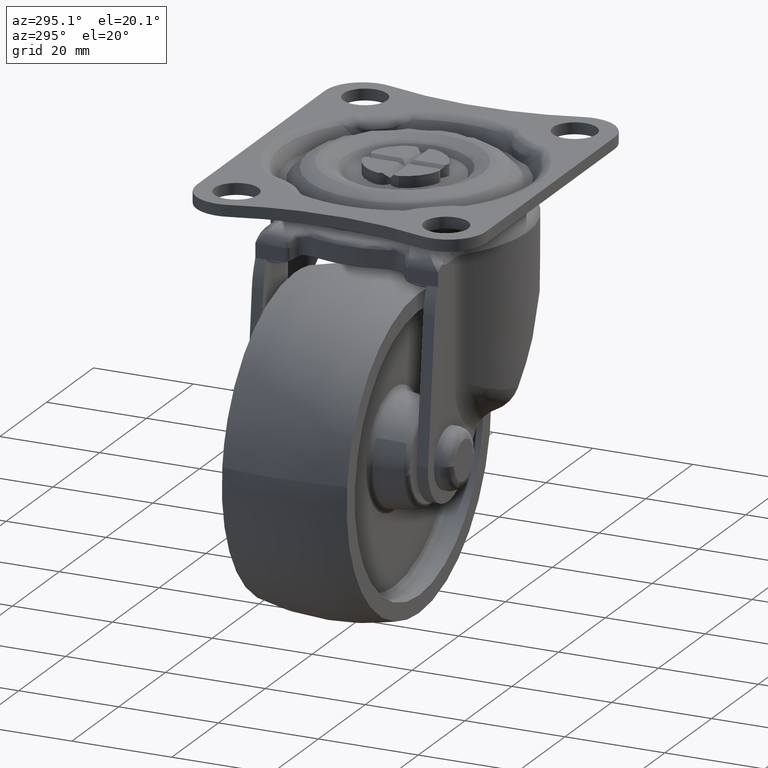
[diagram: clean part render]
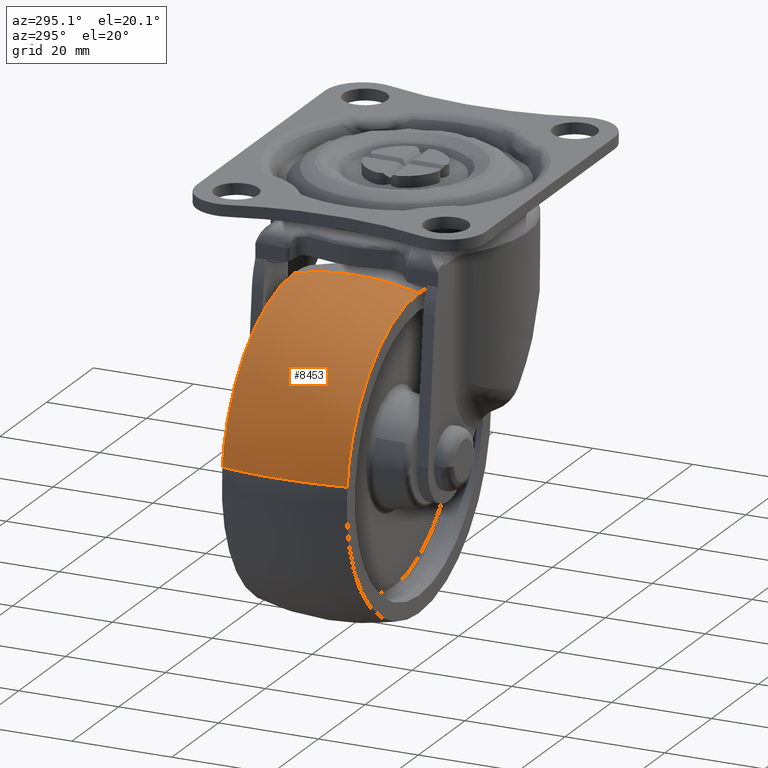
[diagram: same view with one face highlighted and labeled with its STEP entity id]
A machine part, auxiliary view. The second image highlights one B-rep face of the part: STEP entity #8453.
In plain terms, the highlighted face is a freeform B-spline surface patch.
Its self-contained STEP definition (entity closure, byte-faithful):
#8285=CARTESIAN_POINT('',(-30.705538635990781,-12.500014063419490,3.569237819492254));
#8286=VERTEX_POINT('',#8285);
#8304=CARTESIAN_POINT('',(-30.705541457678009,12.500003080849940,3.569238104226155));
#8305=VERTEX_POINT('',#8304);
#8306=CARTESIAN_POINT('',(-30.705538635990781,-12.500014063419494,3.569237819492255));
#8307=CARTESIAN_POINT('',(-32.282631250734525,-6.350840069112803,3.752561728785458));
#8308=CARTESIAN_POINT('',(-32.282631251995511,2.389175E-013,3.752561717941584));
#8309=CARTESIAN_POINT('',(-32.282631253256511,6.350834306240517,3.752561707097721));
#8310=CARTESIAN_POINT('',(-30.705541457678013,12.500003080849943,3.569238104226154));
#8318=(BOUNDED_CURVE()B_SPLINE_CURVE(2,(#8306,#8307,#8308,#8309,#8310),.UNSPECIFIED.,.F.,.U.)B_SPLINE_CURVE_WITH_KNOTS((3,2,3),(0.392857954425892,0.500000000000000,0.607141952068374),.UNSPECIFIED.)CURVE()GEOMETRIC_REPRESENTATION_ITEM()RATIONAL_B_SPLINE_CURVE((0.899397757729670,0.920302691653579,0.956886118190660,0.920302723580915,0.899397794218273))REPRESENTATION_ITEM(''));
#8319=EDGE_CURVE('',#8286,#8305,#8318,.T.);
#8338=CARTESIAN_POINT('',(0.0,12.499985035687580,30.912295691356629));
#8339=VERTEX_POINT('',#8338);
#8355=CARTESIAN_POINT('',(0.0,-12.499996227857480,30.912292801555399));
#8356=VERTEX_POINT('',#8355);
#8357=CARTESIAN_POINT('',(0.0,-12.499996227857482,30.912292801555406));
#8358=CARTESIAN_POINT('',(0.0,-6.350830710276846,32.500000000000000));
#8359=CARTESIAN_POINT('',(0.0,0.0,32.500000000000000));
#8360=CARTESIAN_POINT('',(0.0,6.350824837422084,32.500000000000000));
#8361=CARTESIAN_POINT('',(0.0,12.499985035687576,30.912295691356629));
#8369=(BOUNDED_CURVE()B_SPLINE_CURVE(2,(#8357,#8358,#8359,#8360,#8361),.UNSPECIFIED.,.F.,.U.)B_SPLINE_CURVE_WITH_KNOTS((3,2,3),(0.392858106278130,0.500000000000000,0.607141798431608),.UNSPECIFIED.)CURVE()GEOMETRIC_REPRESENTATION_ITEM()RATIONAL_B_SPLINE_CURVE((0.939921480611918,0.961768308692128,1.0,0.961768342694774,0.939921519472359))REPRESENTATION_ITEM(''));
#8370=EDGE_CURVE('',#8356,#8339,#8369,.T.);
#8390=CARTESIAN_POINT('',(0.198339067734722,-13.755656339184398,30.570593075998726));
#8391=CARTESIAN_POINT('',(0.210856874295948,-7.013140181850745,32.500000000000000));
#8392=CARTESIAN_POINT('',(0.210856874295948,0.0,32.499999999999986));
#8393=CARTESIAN_POINT('',(0.210856874295948,7.013134627563391,32.500000000000007));
#8394=CARTESIAN_POINT('',(0.198339087179934,13.755645865327452,30.570596073147463));
#8395=CARTESIAN_POINT('',(0.099302966158514,-13.755656339184396,30.570593075998726));
#8396=CARTESIAN_POINT('',(0.105570290773506,-7.013140181850745,32.499999999999993));
#8397=CARTESIAN_POINT('',(0.105570290773506,0.0,32.500000000000007));
#8398=CARTESIAN_POINT('',(0.105570290773506,7.013134627563392,32.500000000000000));
#8399=CARTESIAN_POINT('',(0.099302975894202,13.755645865327452,30.570596073147463));
#8400=CARTESIAN_POINT('',(-27.222859423534491,-13.755656339184402,30.570593075998723));
#8401=CARTESIAN_POINT('',(-28.940980276875671,-7.013140181850744,32.499999999999993));
#8402=CARTESIAN_POINT('',(-28.940980276875663,0.0,32.500000000000000));
#8403=CARTESIAN_POINT('',(-28.940980276875671,7.013134627563392,32.500000000000007));
#8404=CARTESIAN_POINT('',(-27.222862092470571,13.755645865327459,30.570596073147467));
#8405=CARTESIAN_POINT('',(-30.378111908541396,-13.755656339184396,3.426697213801778));
#8406=CARTESIAN_POINT('',(-32.295370736615688,-7.013140181850743,3.642966924838422));
#8407=CARTESIAN_POINT('',(-32.295370736615695,0.0,3.642966924838422));
#8408=CARTESIAN_POINT('',(-32.295370736615688,7.013134627563392,3.642966924838422));
#8409=CARTESIAN_POINT('',(-30.378114886819230,13.755645865327457,3.426697549756048));
#8410=CARTESIAN_POINT('',(-30.390069621096139,-13.755656339184393,3.323827821929583));
#8411=CARTESIAN_POINT('',(-32.308083138271193,-7.013140181850744,3.533605119932152));
#8412=CARTESIAN_POINT('',(-32.308083138271208,0.0,3.533605119932151));
#8413=CARTESIAN_POINT('',(-32.308083138271193,7.013134627563393,3.533605119932151));
#8414=CARTESIAN_POINT('',(-30.390072600546301,13.755645865327454,3.323828147798510));
#8422=(BOUNDED_SURFACE()B_SPLINE_SURFACE(2,2,((#8390,#8395,#8400,#8405,#8410),(#8391,#8396,#8401,#8406,#8411),(#8392,#8397,#8402,#8407,#8412),(#8393,#8398,#8403,#8408,#8413),(#8394,#8399,#8404,#8409,#8414)),.UNSPECIFIED.,.F.,.F.,.U.)B_SPLINE_SURFACE_WITH_KNOTS((3,2,3),(3,1,1,3),(0.0,14.359488651476370,28.718966408707281),(0.0,0.247428165018390,49.733031746183990,49.980490439804903),.UNSPECIFIED.)GEOMETRIC_REPRESENTATION_ITEM()RATIONAL_B_SPLINE_SURFACE(((0.938241346660394,0.936980642198252,0.683579195222374,0.896436541344432,0.897495663754951),(0.960530206182221,0.959239552427442,0.699818301192908,0.917732285996251,0.918816568916599),(1.002694619215215,1.001347309607607,0.730538238691624,0.958017997899328,0.959149877607995),(0.960530238171484,0.959239584373722,0.699818324499486,0.917732316560183,0.918816599516642),(0.938241380480594,0.936980675973008,0.683579219862926,0.896436573657720,0.897495696106417)))REPRESENTATION_ITEM('')SURFACE());
#8423=CARTESIAN_POINT('',(0.0,-12.499996227857480,30.912292801555399));
#8424=CARTESIAN_POINT('',(-27.527160729942594,-12.500005145638488,30.912292104940171));
#8425=CARTESIAN_POINT('',(-30.705538635990784,-12.500014063419489,3.569237819492254));
#8433=(BOUNDED_CURVE()B_SPLINE_CURVE(2,(#8423,#8424,#8425),.UNSPECIFIED.,.F.,.U.)B_SPLINE_CURVE_WITH_KNOTS((3,3),(0.500000000000000,0.730000141656213),.UNSPECIFIED.)CURVE()GEOMETRIC_REPRESENTATION_ITEM()RATIONAL_B_SPLINE_CURVE((1.0,0.730538072731047,0.956886397004617))REPRESENTATION_ITEM(''));
#8434=EDGE_CURVE('',#8356,#8286,#8433,.T.);
#8435=ORIENTED_EDGE('',*,*,#8434,.F.);
#8436=ORIENTED_EDGE('',*,*,#8370,.T.);
#8437=CARTESIAN_POINT('',(0.0,12.499985035687580,30.912295691356629));
#8438=CARTESIAN_POINT('',(-27.527162176829314,12.499994058268760,30.912293713550071));
#8439=CARTESIAN_POINT('',(-30.705541457678013,12.500003080849941,3.569238104226155));
#8447=(BOUNDED_CURVE()B_SPLINE_CURVE(2,(#8437,#8438,#8439),.UNSPECIFIED.,.F.,.U.)B_SPLINE_CURVE_WITH_KNOTS((3,3),(0.500000000000000,0.730000141891360),.UNSPECIFIED.)CURVE()GEOMETRIC_REPRESENTATION_ITEM()RATIONAL_B_SPLINE_CURVE((1.0,0.730538072455555,0.956886397467445))REPRESENTATION_ITEM(''));
#8448=EDGE_CURVE('',#8339,#8305,#8447,.T.);
#8449=ORIENTED_EDGE('',*,*,#8448,.T.);
#8450=ORIENTED_EDGE('',*,*,#8319,.F.);
#8451=EDGE_LOOP('',(#8435,#8436,#8449,#8450));
#8452=FACE_OUTER_BOUND('',#8451,.T.);
#8453=ADVANCED_FACE('',(#8452),#8422,.T.);